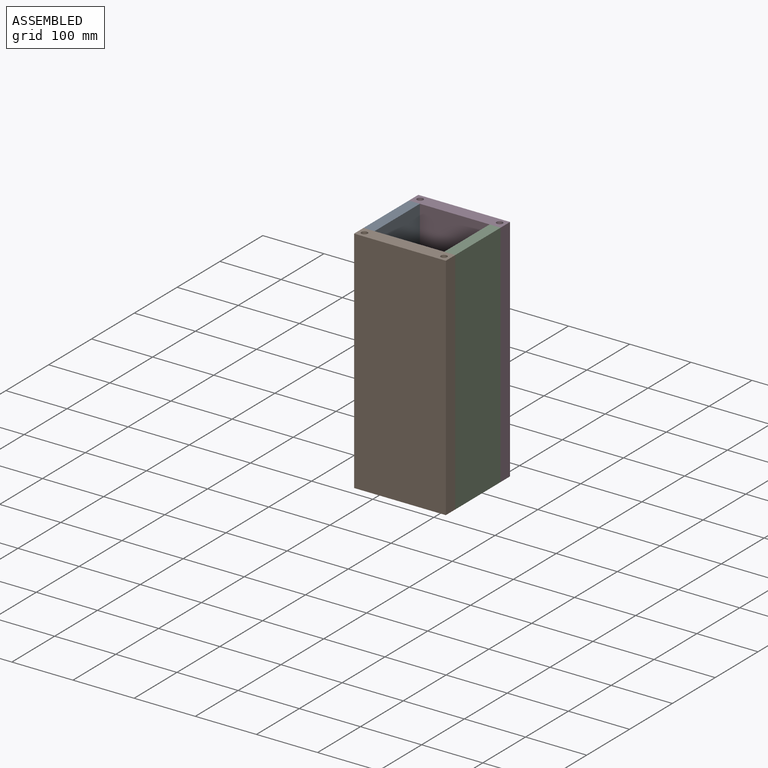
[diagram: assembled view]
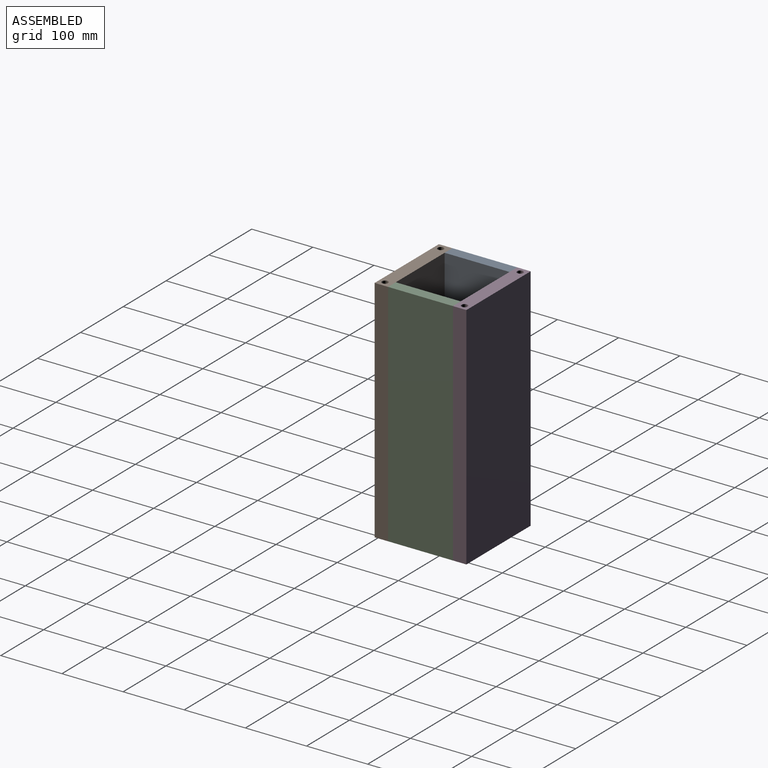
[diagram: assembled view, second angle]
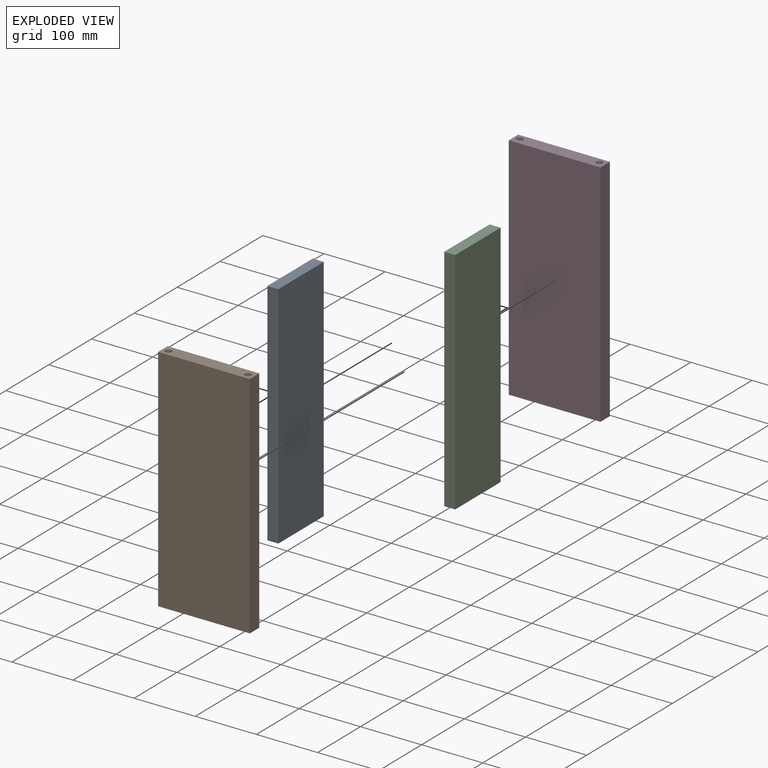
[diagram: exploded view]
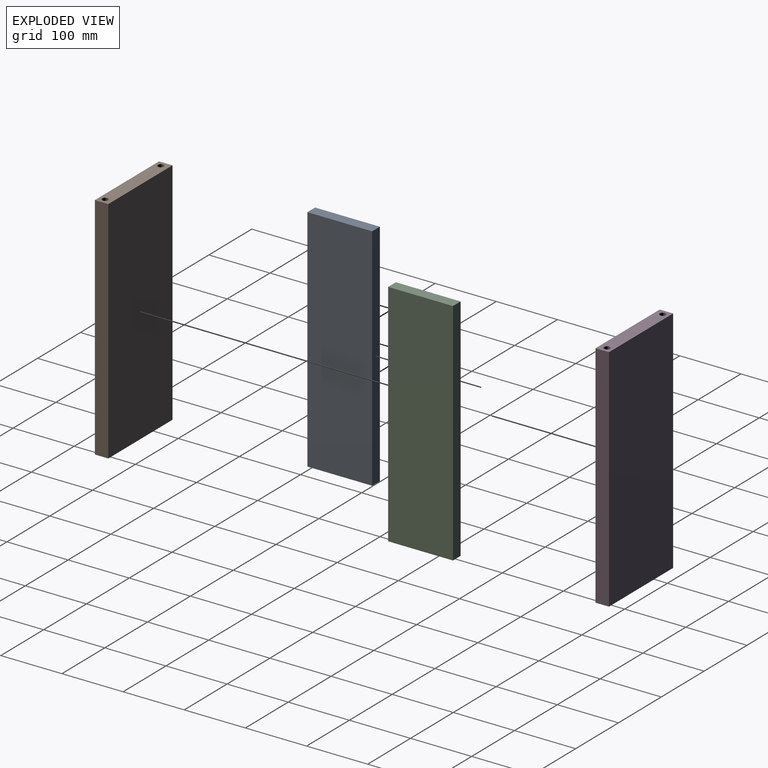
[diagram: exploded view, second angle]
ASSEMBLY  parts=4 mates=3
PART A: 6 faces, bbox 106x18x376 mm
  f0: plane 376x18mm, normal (-1,0,0), area 6768mm2, adj f1,f3,f4,f5
  f1: plane 376x106mm, normal (0,-1,0), area 39856mm2, adj f0,f2,f4,f5
  f2: plane 376x18mm, normal (1,0,0), area 6768mm2, adj f1,f3,f4,f5
  f3: plane 376x106mm, normal (0,1,0), area 39856mm2, adj f0,f2,f4,f5
  f4: plane 106x18mm, normal (0,0,1), area 1908mm2, adj f0,f1,f2,f3
  f5: plane 106x18mm, normal (0,0,-1), area 1908mm2, adj f0,f1,f2,f3
PART B: 14 faces, bbox 150x22x376 mm
  f0: plane 150x22mm, normal (0,0,1), area 3142.9mm2, adj f1,f2,f3,f4,f10,f12
  f1: plane 376x22mm, normal (-1,0,0), area 8272mm2, adj f0,f2,f4,f5
  f2: plane 376x150mm, normal (0,-1,0), area 56400mm2, adj f0,f1,f3,f5
  f3: plane 376x22mm, normal (1,0,0), area 8272mm2, adj f0,f2,f4,f5
  f4: plane 376x150mm, normal (0,1,0), area 56400mm2, adj f0,f1,f3,f5
  f5: plane 150x22mm, normal (0,0,-1), area 3142.9mm2, adj f1,f2,f3,f4,f6,f8
  f6: cylinder r=5mm len=25mm, axis (0,0,-1), area 785.4mm2, adj f5,f7
  f7: plane 10x10mm, normal (0,0,-1), area 78.5mm2, adj f6
  f8: cylinder r=5mm len=25mm, axis (0,0,-1), area 785.4mm2, adj f5,f9
  f9: plane 10x10mm, normal (0,0,-1), area 78.5mm2, adj f8
  f10: cylinder r=5mm len=25mm, axis (0,0,1), area 785.4mm2, adj f0,f11
  f11: plane 10x10mm, normal (0,0,1), area 78.5mm2, adj f10
  f12: cylinder r=5mm len=25mm, axis (0,0,1), area 785.4mm2, adj f0,f13
  f13: plane 10x10mm, normal (0,0,1), area 78.5mm2, adj f12
PART C: same geometry as A
PART D: same geometry as B
PLACE A rot(axis=(0.71,0.71,0),180deg) t=(67.19,-274.65,177.31)mm
PLACE B rot(axis=(1,0,0),180deg) t=(67.19,-274.65,177.31)mm
PLACE C rot(axis=(0,0,1),90deg) t=(217.19,-274.65,-198.69)mm
PLACE D rot(axis=(0,1,0),180deg) t=(217.19,-168.65,177.31)mm
MATE fastened D.f2 <-> A.f2  axis (0,-1,0) through (67.19,-168.65,-10.69)mm
MATE fastened B.f2 <-> A.f0  axis (0,1,0) through (67.19,-274.65,-10.69)mm
MATE fastened B.f2 <-> C.f0  axis (0,1,0) through (217.19,-274.65,-10.69)mm
